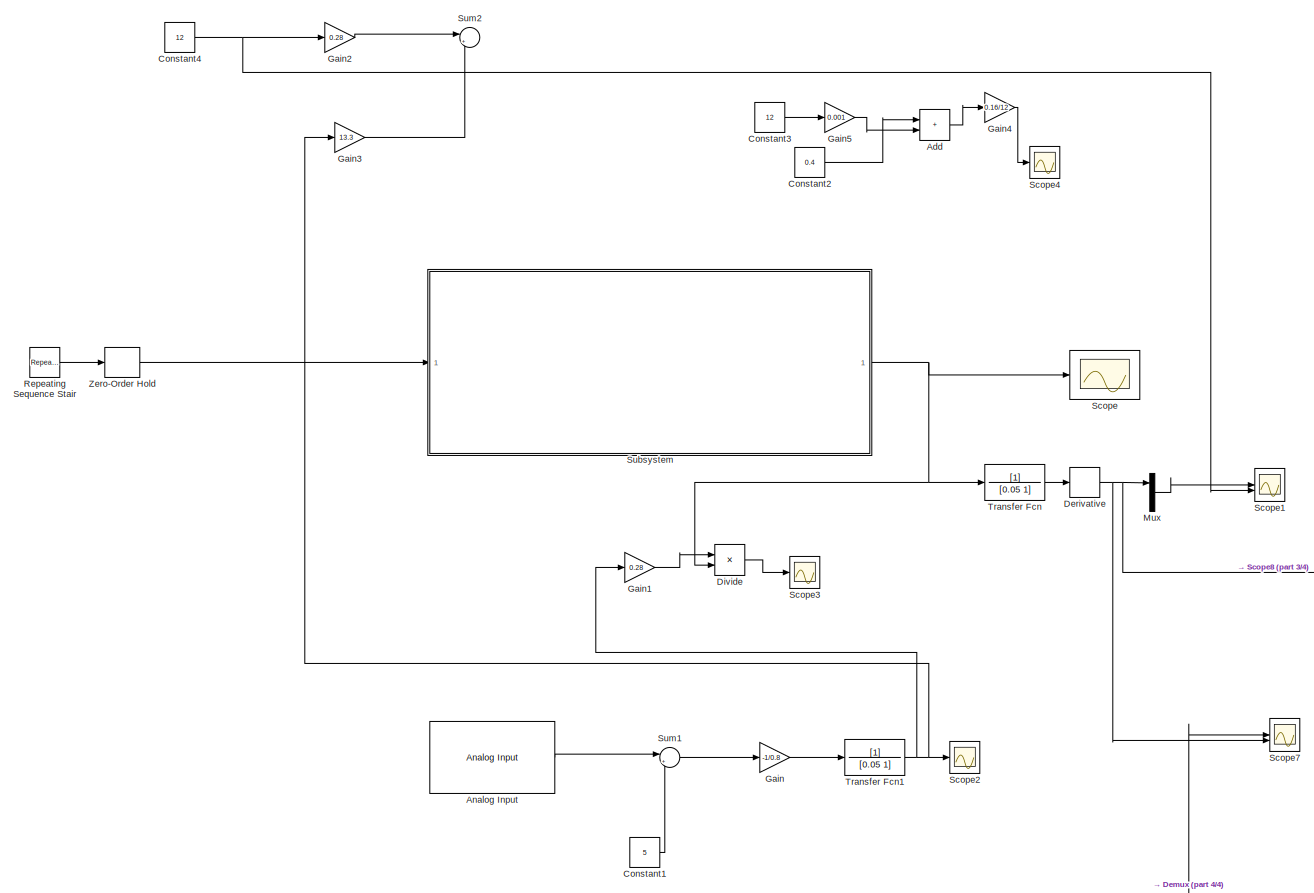
[diagram: root canvas - part 1/4, left side, full height]
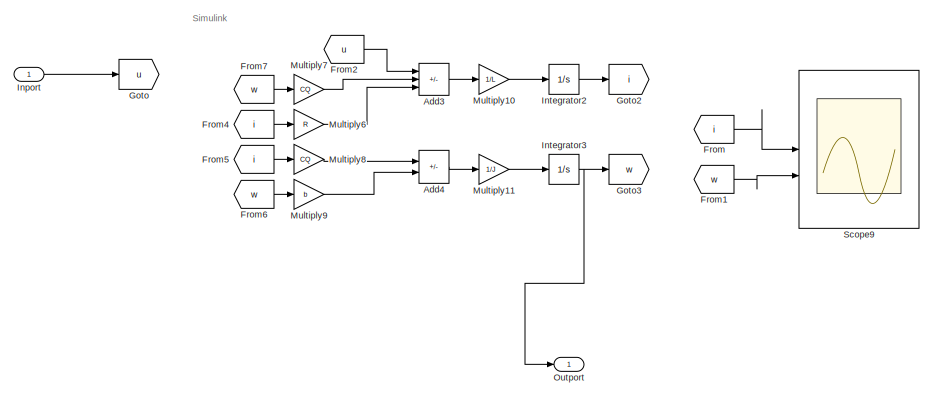
[diagram: root canvas - part 2/4, middle right region]
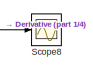
[diagram: root canvas - part 3/4, central region]
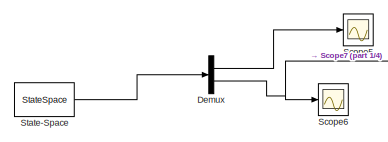
[diagram: root canvas - part 4/4, bottom left region]
MODEL slx_ac10f7da5908
KIND model
CONFIG AbsTol = auto
CONFIG EnableMultiTasking = off
CONFIG FixedStep = Ts
CONFIG MaxStep = auto
CONFIG MinStep = auto
CONFIG RelTol = 1e-3
CONFIG SampleTimeConstraint = Unconstrained
CONFIG SolverName = ode5
CONFIG StartTime = 0.0
CONFIG StopTime = 1.5
BLOCK [Sum] Add
  Commented = on
  IconShape = rectangular
BLOCK [Sum] Add3
  IconShape = rectangular
  Inputs = +--
BLOCK [Sum] Add4
  IconShape = rectangular
  Inputs = +-
BLOCK [Reference] Analog Input  REF=sldrtlib/Analog Input
  AttributesFormatString = Humusoft\nMF634 [auto]
  Commented = on
  SourceBlock = sldrtlib/Analog Input
  SourceType = Simulink Desktop Real-Time Analog Input
BLOCK [Constant] Constant1
  Commented = on
  Value = 5
BLOCK [Constant] Constant2
  Commented = on
  Value = 0.4
BLOCK [Constant] Constant3
  Commented = on
  Value = 12
BLOCK [Constant] Constant4
  Commented = on
  Value = 12
BLOCK [Demux] Demux
  Commented = on
  Outputs = 2
BLOCK [Derivative] Derivative
  Commented = on
BLOCK [Product] Divide
  Commented = on
  Inputs = */
BLOCK [From] From
  GotoTag = i
BLOCK [From] From1
  GotoTag = w
BLOCK [From] From2
  GotoTag = u
BLOCK [From] From4
  GotoTag = i
BLOCK [From] From5
  GotoTag = i
BLOCK [From] From6
  GotoTag = w
BLOCK [From] From7
  GotoTag = w
BLOCK [Gain] Gain
  Commented = on
  Gain = -1/0.8
BLOCK [Gain] Gain1
  Commented = on
  Gain = 0.28
BLOCK [Gain] Gain2
  Commented = on
  Gain = 0.28
BLOCK [Gain] Gain3
  Commented = on
  Gain = 13.3
BLOCK [Gain] Gain4
  Commented = on
  Gain = 0.16/12
BLOCK [Gain] Gain5
  Commented = on
  Gain = 0.001
BLOCK [Goto] Goto
  GotoTag = u
BLOCK [Goto] Goto2
  GotoTag = i
BLOCK [Goto] Goto3
  GotoTag = w
BLOCK [Inport] Inport
BLOCK [Integrator] Integrator2
BLOCK [Integrator] Integrator3
BLOCK [Gain] Multiply10
  Gain = 1/L
BLOCK [Gain] Multiply11
  Gain = 1/J
BLOCK [Gain] Multiply6
  Gain = R
BLOCK [Gain] Multiply7
  Gain = CQ
BLOCK [Gain] Multiply8
  Gain = CQ
BLOCK [Gain] Multiply9
  Gain = b
BLOCK [Mux] Mux
  Commented = on
  DisplayOption = bar
  Inputs = 3
BLOCK [Outport] Outport
BLOCK [Reference] Repeating Sequence Stair  REF=simulink/Sources/Repeating
Sequence
Stair
  Commented = on
  SourceBlock = simulink/Sources/Repeating\nSequence\nStair
  SourceType = Repeating Sequence Stair
BLOCK [Scope] Scope
  Commented = on
  Floating = off
  NumInputPorts = 2
  ScopeSpecificationString = Simulink.scopes.TimeScopeBlockCfg('CurrentConfiguration', extmgr.ConfigurationSet(extmgr.Configuration('Core','General UI',true),extmgr.Configuration('Core','Source UI',true),extmgr.Configuration('Sources','WiredSimulink',true),extmgr.Configuration('Visuals','Time Domain',true,'SerializedDisplays',{struct('MinYLimReal','-6.01481','MaxYLimReal','54.13328','YLabelReal','','MinYLimMag','0.00000','Max...<+1462ch>
BLOCK [Scope] Scope1
  Commented = on
  Floating = off
  NumInputPorts = 2
  ScopeSpecificationString = Simulink.scopes.TimeScopeBlockCfg('CurrentConfiguration', extmgr.ConfigurationSet(extmgr.Configuration('Core','General UI',true),extmgr.Configuration('Core','Source UI',true),extmgr.Configuration('Sources','WiredSimulink',true,'DataLoggingVariableName','ScopeData1'),extmgr.Configuration('Visuals','Time Domain',true,'SerializedDisplays',{struct('MinYLimReal','-32.81298','MaxYLimReal','32.63774','YL...<+1528ch>
BLOCK [Scope] Scope2
  Commented = on
  Floating = off
  NumInputPorts = 1
  ScopeSpecificationString = Simulink.scopes.TimeScopeBlockCfg('CurrentConfiguration', extmgr.ConfigurationSet(extmgr.Configuration('Core','General UI',true),extmgr.Configuration('Core','Source UI',true),extmgr.Configuration('Sources','WiredSimulink',true,'DataLoggingVariableName','ScopeData1'),extmgr.Configuration('Visuals','Time Domain',true,'SerializedDisplays',{struct('MinYLimReal','-0.62647','MaxYLimReal','0.55241','YLab...<+1491ch>
BLOCK [Scope] Scope3
  Commented = on
  Floating = off
  NumInputPorts = 1
  ScopeSpecificationString = Simulink.scopes.TimeScopeBlockCfg('CurrentConfiguration', extmgr.ConfigurationSet(extmgr.Configuration('Core','General UI',true),extmgr.Configuration('Core','Source UI',true),extmgr.Configuration('Sources','WiredSimulink',true,'DataLoggingVariableName','ScopeData1'),extmgr.Configuration('Visuals','Time Domain',true,'SerializedDisplays',{struct('MinYLimReal','-0.01027','MaxYLimReal','0.01646','YLab...<+1473ch>
BLOCK [Scope] Scope4
  Commented = on
  Floating = off
  NumInputPorts = 1
  ScopeSpecificationString = Simulink.scopes.TimeScopeBlockCfg('CurrentConfiguration', extmgr.ConfigurationSet(extmgr.Configuration('Core','General UI',true),extmgr.Configuration('Core','Source UI',true),extmgr.Configuration('Sources','WiredSimulink',true,'DataLoggingVariableName','ScopeData2'),extmgr.Configuration('Visuals','Time Domain',true,'SerializedDisplays',{struct('MinYLimReal','-0.01502','MaxYLimReal','0.01293','YLab...<+1472ch>
BLOCK [Scope] Scope5
  Commented = on
  Floating = off
  NumInputPorts = 1
  ScopeSpecificationString = Simulink.scopes.TimeScopeBlockCfg('CurrentConfiguration', extmgr.ConfigurationSet(extmgr.Configuration('Core','General UI',true),extmgr.Configuration('Core','Source UI',true),extmgr.Configuration('Sources','WiredSimulink',true,'DataLoggingVariableName','ScopeData3'),extmgr.Configuration('Visuals','Time Domain',true,'SerializedDisplays',{struct('MinYLimReal','-0.2308','MaxYLimReal','0.22624','YLabe...<+1481ch>
BLOCK [Scope] Scope6
  Commented = on
  Floating = off
  NumInputPorts = 1
  ScopeSpecificationString = Simulink.scopes.TimeScopeBlockCfg('CurrentConfiguration', extmgr.ConfigurationSet(extmgr.Configuration('Core','General UI',true),extmgr.Configuration('Core','Source UI',true),extmgr.Configuration('Sources','WiredSimulink',true,'DataLoggingVariableName','ScopeData4'),extmgr.Configuration('Visuals','Time Domain',true,'SerializedDisplays',{struct('MinYLimReal','-34.37216','MaxYLimReal','34.37235','YL...<+1491ch>
BLOCK [Scope] Scope7
  Commented = on
  Floating = off
  NumInputPorts = 2
  ScopeSpecificationString = Simulink.scopes.TimeScopeBlockCfg('CurrentConfiguration', extmgr.ConfigurationSet(extmgr.Configuration('Core','General UI',true),extmgr.Configuration('Core','Source UI',true),extmgr.Configuration('Sources','WiredSimulink',true,'DataLoggingVariableName','ScopeData5'),extmgr.Configuration('Visuals','Time Domain',true,'SerializedDisplays',{struct('MinYLimReal','-34.37216','MaxYLimReal','34.37235','YL...<+1504ch>
BLOCK [Scope] Scope8
  Commented = on
  Floating = off
  NumInputPorts = 1
  ScopeSpecificationString = Simulink.scopes.TimeScopeBlockCfg('CurrentConfiguration', extmgr.ConfigurationSet(extmgr.Configuration('Core','General UI',true),extmgr.Configuration('Core','Source UI',true),extmgr.Configuration('Sources','WiredSimulink',true,'DataLoggingVariableName','ScopeData1'),extmgr.Configuration('Visuals','Time Domain',true),extmgr.Configuration('Tools','Plot Navigation',true),extmgr.Configuration('Tools',...<+40ch>
BLOCK [Scope] Scope9
  Floating = off
  NumInputPorts = 2
  ScopeSpecificationString = Simulink.scopes.TimeScopeBlockCfg('CurrentConfiguration', extmgr.ConfigurationSet(extmgr.Configuration('Core','General UI',true),extmgr.Configuration('Core','Source UI',true),extmgr.Configuration('Sources','WiredSimulink',true,'DataLoggingVariableName','ScopeData2'),extmgr.Configuration('Visuals','Time Domain',true),extmgr.Configuration('Tools','Plot Navigation',true),extmgr.Configuration('Tools',...<+40ch>
BLOCK [StateSpace] State-Space
  A = A
  B = B
  C = C
  Commented = on
  D = D
  InitialCondition = 0
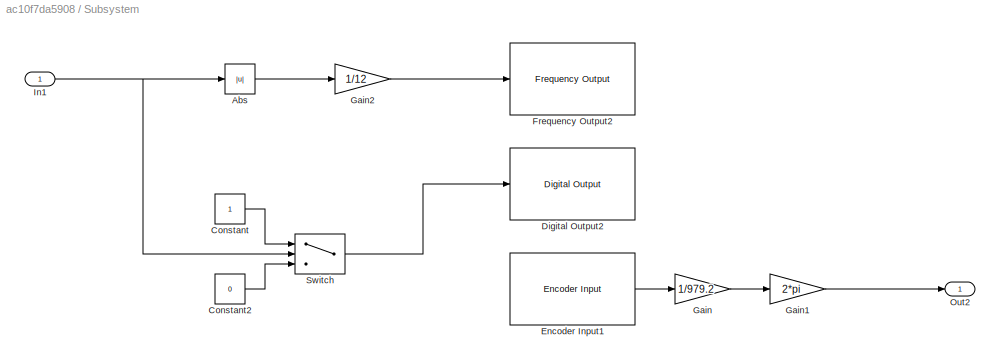
BLOCK [SubSystem] Subsystem
  Commented = on
BLOCK [Abs] Subsystem/Abs
  SaturateOnIntegerOverflow = off
BLOCK [Constant] Subsystem/Constant
BLOCK [Constant] Subsystem/Constant2
  Value = 0
BLOCK [Reference] Subsystem/Digital Output2  REF=sldrtlib/Digital Output
  AttributesFormatString = Humusoft\nMF634 [auto]
  SourceBlock = sldrtlib/Digital Output
  SourceType = Simulink Desktop Real-Time Digital Output
BLOCK [Reference] Subsystem/Encoder Input1  REF=sldrtlib/Encoder Input
  AttributesFormatString = Humusoft\nMF634 [auto]
  SourceBlock = sldrtlib/Encoder Input
  SourceType = Simulink Desktop Real-Time Encoder Input
BLOCK [Reference] Subsystem/Frequency Output2  REF=sldrtlib/Frequency Output
  AttributesFormatString = Humusoft\nMF634 [auto]
  SourceBlock = sldrtlib/Frequency Output
  SourceType = Simulink Desktop Real-Time Frequency Output
BLOCK [Gain] Subsystem/Gain
  Gain = 1/979.2
BLOCK [Gain] Subsystem/Gain1
  Gain = 2*pi
BLOCK [Gain] Subsystem/Gain2
  Gain = 1/12
BLOCK [Inport] Subsystem/In1
BLOCK [Outport] Subsystem/Out2
BLOCK [Switch] Subsystem/Switch
  Criteria = u2 > Threshold
  InputSameDT = off
  SaturateOnIntegerOverflow = off
BLOCK [Sum] Sum1
  Commented = on
  Inputs = |+-
BLOCK [Sum] Sum2
  Commented = on
  Inputs = |++
BLOCK [TransferFcn] Transfer Fcn
  Commented = on
  Denominator = [0.05 1]
BLOCK [TransferFcn] Transfer Fcn1
  Commented = on
  Denominator = [0.05 1]
BLOCK [ZeroOrderHold] Zero-Order Hold
  Commented = on
  SampleTime = Ts
ANNOTATION (root): Simulink
LINE Add3:1 -> Multiply10:1
LINE Add4:1 -> Multiply11:1
LINE Add:1 -> Gain4:1
LINE Analog Input:1 -> Sum1:1
LINE Constant1:1 -> Sum1:2
LINE Constant2:1 -> Add:1
LINE Constant3:1 -> Gain5:1
NET Constant4:1 -> Gain2:1, Scope1:2
LINE Demux:1 -> Scope5:1
NET Demux:2 -> Scope6:1, Scope7:1
NET Derivative:1 -> Mux:1, Scope7:2, Scope8:1
LINE Divide:1 -> Scope3:1
LINE From1:1 -> Scope9:2
LINE From2:1 -> Add3:1
LINE From4:1 -> Multiply6:1
LINE From5:1 -> Multiply8:1
LINE From6:1 -> Multiply9:1
LINE From7:1 -> Multiply7:1
LINE From:1 -> Scope9:1
LINE Gain1:1 -> Divide:1
LINE Gain2:1 -> Sum2:1
LINE Gain3:1 -> Sum2:2
LINE Gain4:1 -> Scope4:1
LINE Gain5:1 -> Add:2
LINE Gain:1 -> Transfer Fcn1:1
LINE Inport:1 -> Goto:1
LINE Integrator2:1 -> Goto2:1
NET Integrator3:1 -> Goto3:1, Outport:1
LINE Multiply10:1 -> Integrator2:1
LINE Multiply11:1 -> Integrator3:1
LINE Multiply6:1 -> Add3:3
LINE Multiply7:1 -> Add3:2
LINE Multiply8:1 -> Add4:1
LINE Multiply9:1 -> Add4:2
LINE Mux:1 -> Scope1:1
LINE Repeating Sequence Stair:1 -> Zero-Order Hold:1
LINE State-Space:1 -> Demux:1
LINE Subsystem/Abs:1 -> Subsystem/Gain2:1
LINE Subsystem/Constant2:1 -> Subsystem/Switch:3
LINE Subsystem/Constant:1 -> Subsystem/Switch:1
LINE Subsystem/Encoder Input1:1 -> Subsystem/Gain:1
LINE Subsystem/Gain1:1 -> Subsystem/Out2:1
LINE Subsystem/Gain2:1 -> Subsystem/Frequency Output2:1
LINE Subsystem/Gain:1 -> Subsystem/Gain1:1
NET Subsystem/In1:1 -> Subsystem/Abs:1, Subsystem/Switch:2
LINE Subsystem/Switch:1 -> Subsystem/Digital Output2:1
NET Subsystem:1 -> Divide:2, Scope:1, Transfer Fcn:1
LINE Sum1:1 -> Gain:1
NET Transfer Fcn1:1 -> Gain1:1, Gain3:1, Scope2:1
LINE Transfer Fcn:1 -> Derivative:1
LINE Zero-Order Hold:1 -> Subsystem:1
note: NET lines group one-source signal fan-out (src -> all destinations, sorted); 1:1 wires keep LINE
